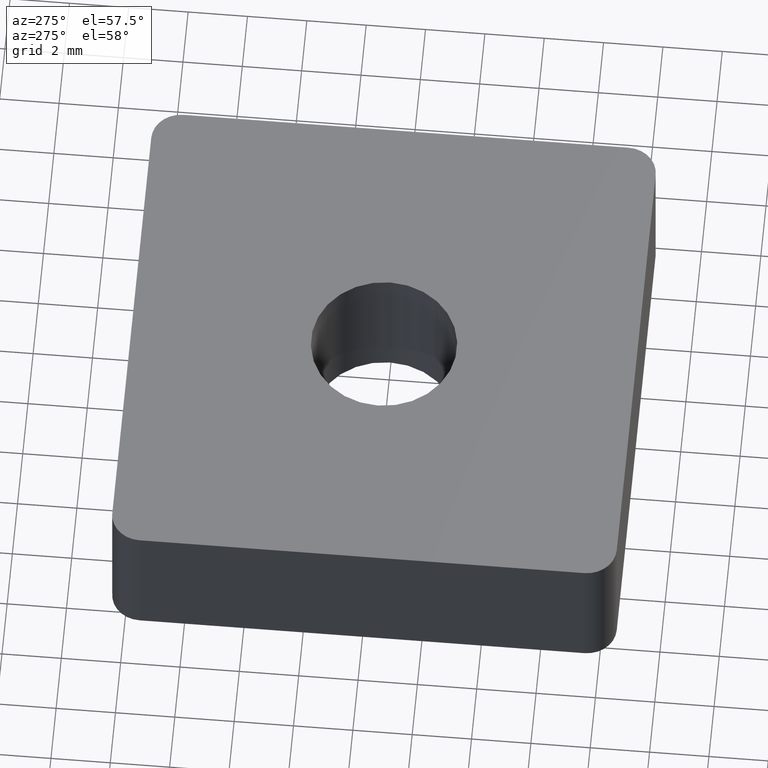
[diagram: clean part render]
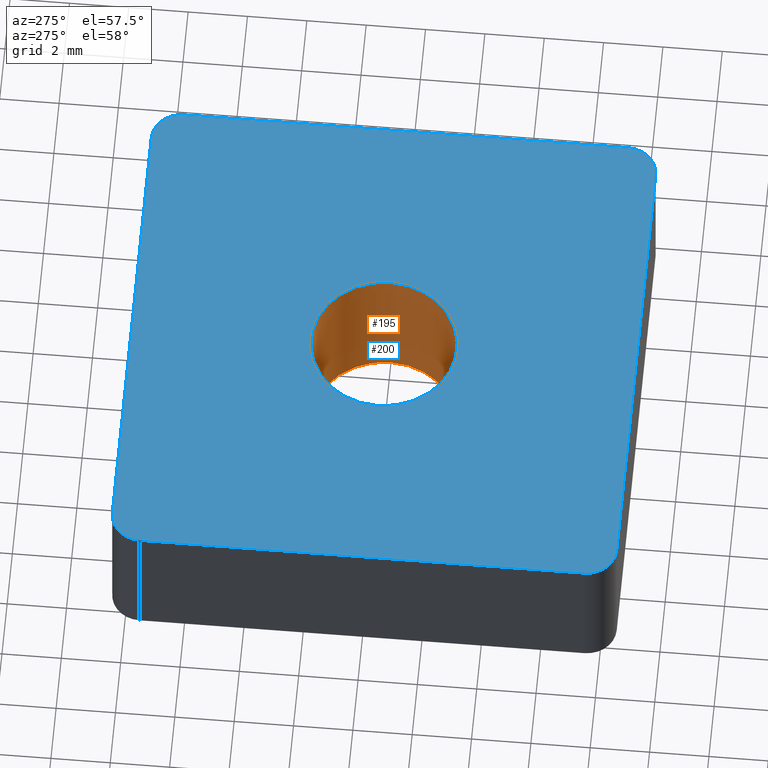
[diagram: same view with the hole feature highlighted: cylindrical wall and planar end face, labeled with their STEP entity ids]
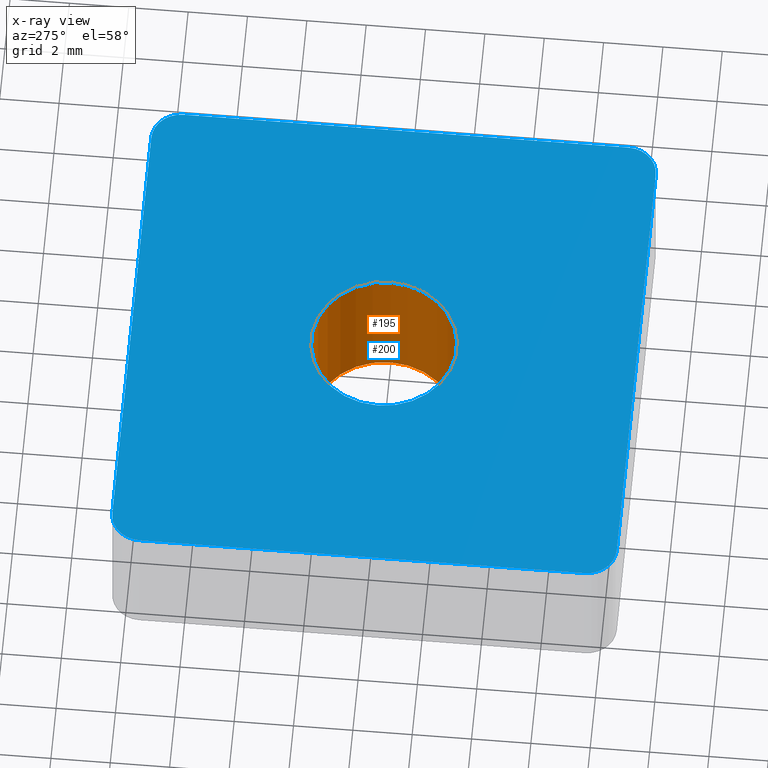
[diagram: x-ray of the same camera — body ghosted, the hole faces saturated]
A machine part, auxiliary view. The highlighted faces form one hole feature of diameter 4.917 mm: the cylindrical wall (entity #195, orange) and its adjacent planar end face (entity #200, blue) — they share a circular edge in the B-rep.
The next image is the same camera in x-ray (body ghosted, the hole faces saturated) — the bore reads through the body.
Wall:
#23=FACE_OUTER_BOUND('',#34,.T.);
#34=EDGE_LOOP('',(#136,#137,#138,#139));
#47=LINE('',#316,#64);
#64=VECTOR('',#256,2.4585);
#81=CIRCLE('',#230,2.4585);
#82=CIRCLE('',#231,2.4585);
#91=VERTEX_POINT('',#313);
#92=VERTEX_POINT('',#315);
#109=EDGE_CURVE('',#91,#91,#81,.T.);
#110=EDGE_CURVE('',#91,#92,#47,.T.);
#111=EDGE_CURVE('',#92,#92,#82,.T.);
#136=ORIENTED_EDGE('',*,*,#109,.F.);
#137=ORIENTED_EDGE('',*,*,#110,.T.);
#138=ORIENTED_EDGE('',*,*,#111,.F.);
#139=ORIENTED_EDGE('',*,*,#110,.F.);
#190=CYLINDRICAL_SURFACE('',#229,2.4585);
#195=ADVANCED_FACE('',(#23),#190,.F.);
#229=AXIS2_PLACEMENT_3D('',#312,#252,#253);
#230=AXIS2_PLACEMENT_3D('',#314,#254,#255);
#231=AXIS2_PLACEMENT_3D('',#317,#257,#258);
#252=DIRECTION('center_axis',(0.,0.,1.));
#253=DIRECTION('ref_axis',(1.,0.,0.));
#254=DIRECTION('center_axis',(0.,0.,-1.));
#255=DIRECTION('ref_axis',(1.,0.,0.));
#256=DIRECTION('',(0.,0.,-1.));
#257=DIRECTION('center_axis',(0.,0.,1.));
#258=DIRECTION('ref_axis',(1.,0.,0.));
#312=CARTESIAN_POINT('Origin',(6.66133814775094E-15,0.,-24.5560583156174));
#313=CARTESIAN_POINT('',(-2.45849999999999,-3.01079415570377E-16,0.));
#314=CARTESIAN_POINT('Origin',(6.66133814775094E-15,0.,0.));
#315=CARTESIAN_POINT('',(-2.45849999999999,-3.01079415570377E-16,-5.));
#316=CARTESIAN_POINT('',(-2.45849999999999,-3.01079415570377E-16,-24.5560583156174));
#317=CARTESIAN_POINT('Origin',(6.66133814775094E-15,0.,-5.));
End face:
#15=FACE_BOUND('',#40,.T.);
#21=PLANE('',#236);
#28=FACE_OUTER_BOUND('',#39,.T.);
#39=EDGE_LOOP('',(#156,#157,#158,#159,#160,#161,#162,#163));
#40=EDGE_LOOP('',(#164));
#48=LINE('',#321,#65);
#54=LINE('',#334,#71);
#58=LINE('',#343,#75);
#60=LINE('',#348,#77);
#65=VECTOR('',#261,15.);
#71=VECTOR('',#269,15.);
#75=VECTOR('',#275,15.);
#77=VECTOR('',#279,15.);
#81=CIRCLE('',#230,2.4585);
#83=CIRCLE('',#237,1.);
#84=CIRCLE('',#238,1.);
#85=CIRCLE('',#239,1.);
#86=CIRCLE('',#240,1.);
#91=VERTEX_POINT('',#313);
#93=VERTEX_POINT('',#319);
#94=VERTEX_POINT('',#320);
#99=VERTEX_POINT('',#331);
#100=VERTEX_POINT('',#333);
#103=VERTEX_POINT('',#340);
#104=VERTEX_POINT('',#342);
#105=VERTEX_POINT('',#346);
#106=VERTEX_POINT('',#347);
#109=EDGE_CURVE('',#91,#91,#81,.T.);
#112=EDGE_CURVE('',#93,#94,#48,.T.);
#118=EDGE_CURVE('',#100,#99,#54,.T.);
#122=EDGE_CURVE('',#104,#103,#58,.T.);
#124=EDGE_CURVE('',#105,#106,#60,.T.);
#128=EDGE_CURVE('',#103,#105,#83,.T.);
#129=EDGE_CURVE('',#106,#93,#84,.T.);
#130=EDGE_CURVE('',#94,#100,#85,.T.);
#131=EDGE_CURVE('',#99,#104,#86,.T.);
#156=ORIENTED_EDGE('',*,*,#122,.T.);
#157=ORIENTED_EDGE('',*,*,#128,.T.);
#158=ORIENTED_EDGE('',*,*,#124,.T.);
#159=ORIENTED_EDGE('',*,*,#129,.T.);
#160=ORIENTED_EDGE('',*,*,#112,.T.);
#161=ORIENTED_EDGE('',*,*,#130,.T.);
#162=ORIENTED_EDGE('',*,*,#118,.T.);
#163=ORIENTED_EDGE('',*,*,#131,.T.);
#164=ORIENTED_EDGE('',*,*,#109,.T.);
#200=ADVANCED_FACE('',(#28,#15),#21,.T.);
#230=AXIS2_PLACEMENT_3D('',#314,#254,#255);
#236=AXIS2_PLACEMENT_3D('',#354,#283,#284);
#237=AXIS2_PLACEMENT_3D('',#355,#285,#286);
#238=AXIS2_PLACEMENT_3D('',#356,#287,#288);
#239=AXIS2_PLACEMENT_3D('',#357,#289,#290);
#240=AXIS2_PLACEMENT_3D('',#358,#291,#292);
#254=DIRECTION('center_axis',(0.,0.,-1.));
#255=DIRECTION('ref_axis',(1.,0.,0.));
#261=DIRECTION('',(0.,-1.,0.));
#269=DIRECTION('',(1.,0.,0.));
#275=DIRECTION('',(0.,1.,0.));
#279=DIRECTION('',(-1.,0.,0.));
#283=DIRECTION('center_axis',(0.,0.,1.));
#284=DIRECTION('ref_axis',(1.,0.,0.));
#285=DIRECTION('center_axis',(0.,0.,1.));
#286=DIRECTION('ref_axis',(1.,0.,0.));
#287=DIRECTION('center_axis',(0.,0.,1.));
#288=DIRECTION('ref_axis',(1.,0.,0.));
#289=DIRECTION('center_axis',(0.,0.,1.));
#290=DIRECTION('ref_axis',(1.,0.,0.));
#291=DIRECTION('center_axis',(0.,0.,1.));
#292=DIRECTION('ref_axis',(1.,0.,0.));
#313=CARTESIAN_POINT('',(-2.45849999999999,-3.01079415570377E-16,0.));
#314=CARTESIAN_POINT('Origin',(6.66133814775094E-15,0.,0.));
#319=CARTESIAN_POINT('',(-8.5,7.50000000000001,0.));
#320=CARTESIAN_POINT('',(-8.5,-7.49999999999998,0.));
#321=CARTESIAN_POINT('',(-8.5,7.50000000000001,0.));
#331=CARTESIAN_POINT('',(7.49999999999999,-8.5,0.));
#333=CARTESIAN_POINT('',(-7.5,-8.5,0.));
#334=CARTESIAN_POINT('',(-7.5,-8.5,0.));
#340=CARTESIAN_POINT('',(8.49999999999999,7.50000000000001,0.));
#342=CARTESIAN_POINT('',(8.49999999999999,-7.49999999999998,0.));
#343=CARTESIAN_POINT('',(8.49999999999999,-7.49999999999998,0.));
#346=CARTESIAN_POINT('',(7.49999999999999,8.50000000000001,0.));
#347=CARTESIAN_POINT('',(-7.5,8.50000000000001,0.));
#348=CARTESIAN_POINT('',(7.49999999999999,8.50000000000001,0.));
#354=CARTESIAN_POINT('Origin',(-9.35,-9.35,0.));
#355=CARTESIAN_POINT('Origin',(7.49999999999999,7.50000000000001,0.));
#356=CARTESIAN_POINT('Origin',(-7.5,7.50000000000001,0.));
#357=CARTESIAN_POINT('Origin',(-7.5,-7.49999999999998,0.));
#358=CARTESIAN_POINT('Origin',(7.49999999999999,-7.49999999999998,0.));